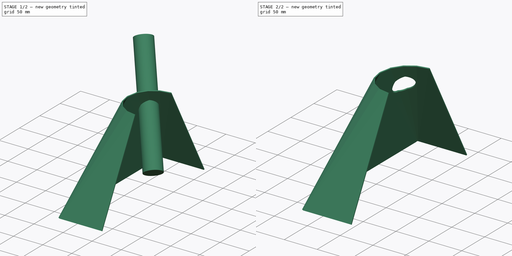
[diagram: build sequence overview — one tinted view per stage of 2, left to right]
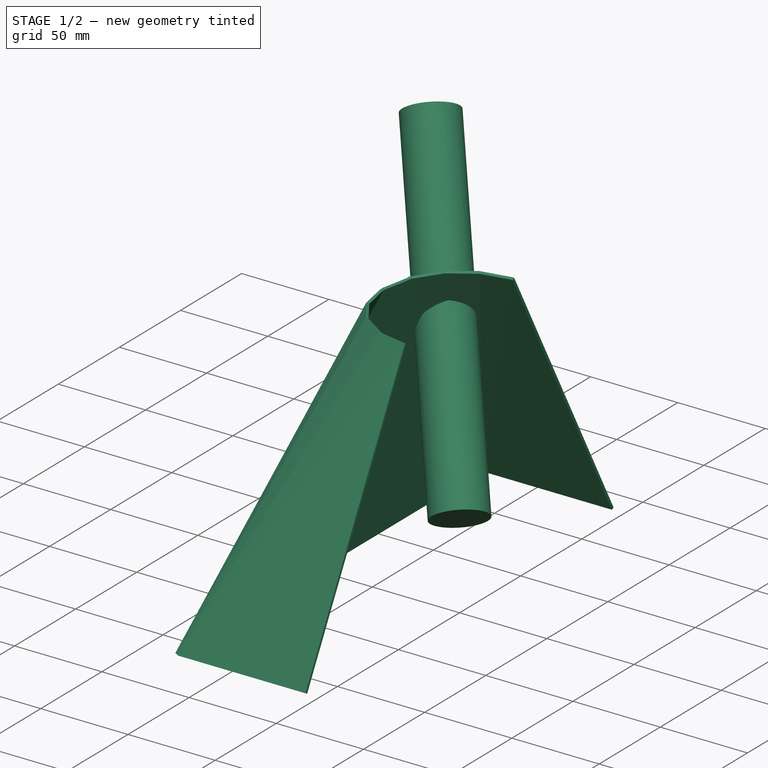
[diagram: stage 1 of 2 — iso view after this stage's code; geometry added in this stage tinted green]
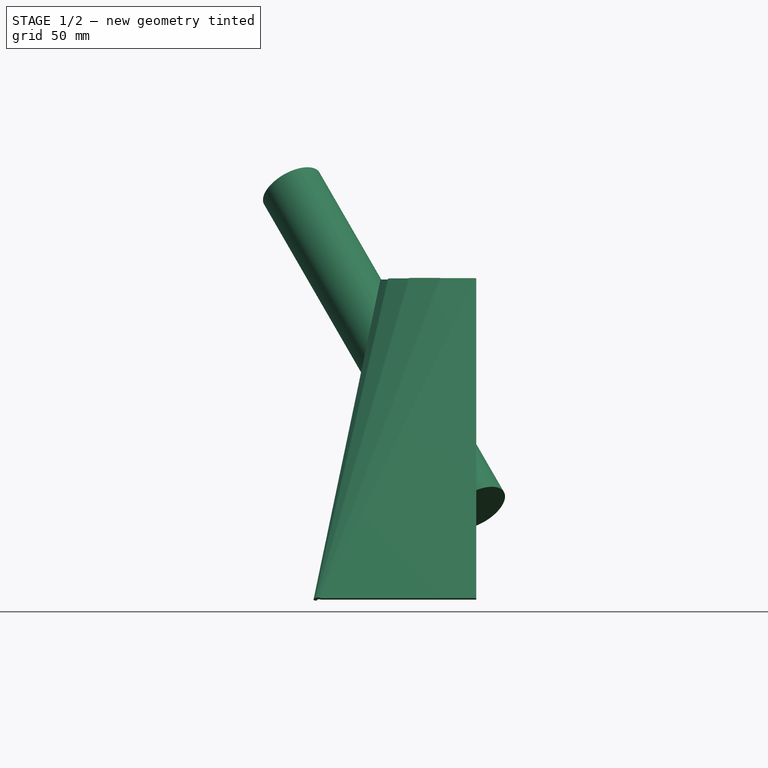
[diagram: stage 1 of 2 — front view after this stage's code; geometry added in this stage tinted green]
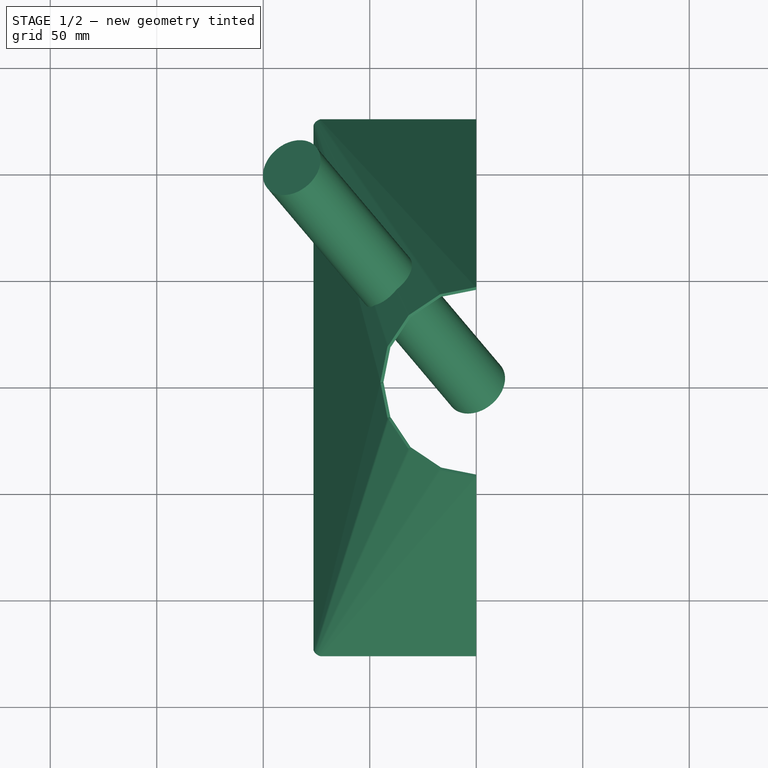
[diagram: stage 1 of 2 — top view after this stage's code; geometry added in this stage tinted green]
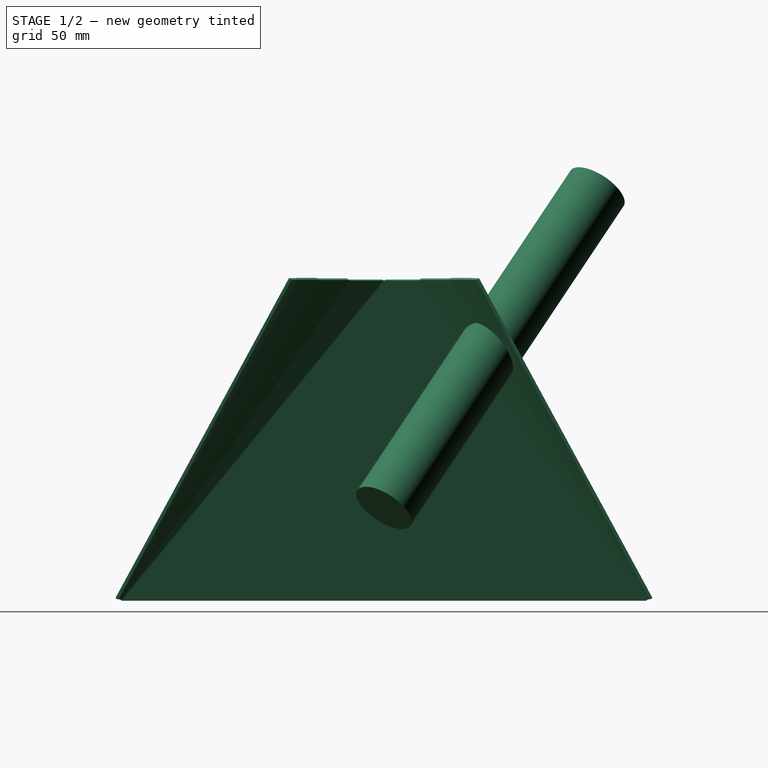
[diagram: stage 1 of 2 — right view after this stage's code; geometry added in this stage tinted green]
FCSTD DOCUMENT  (FreeCAD 0.19R25467 (Git))
Label: FC-Link-sheetmetal_square_round
License: All rights reserved
LicenseURL: http://en.wikipedia.org/wiki/All_rights_reserved
objects: PartDesign::SubShapeBinder×6, Sketcher::SketchObject×2, Part::FeaturePython×2, Part::Offset×2, PartDesign::Body×1, Part::Mirroring×1, Part::Cylinder×1, Part::Cut×1
note: 16 computed .brp shape members not serialized (recipe doc carries the construction recipe); baked Part::Feature solids carry a one-line shape summary decoded from their .brp

FEATURE [Sketcher::SketchObject] Sketch
  MapMode = 5
  Support = -> [XY_Plane]
  sketch-geometry (8):
    g0: LineSegment StartX=-73 StartY=123 StartZ=0 EndX=-73 EndY=0 EndZ=0
    g1: LineSegment StartX=-73 StartY=123 StartZ=0 EndX=0 EndY=123 EndZ=0
    g2: GeomPoint X=75 Y=123 Z=0
    g3: GeomPoint X=-73 Y=-125 Z=0
    g4: GeomPoint X=-75 Y=123 Z=0
    g5: GeomPoint X=-73 Y=125 Z=0
    g6: LineSegment [constr] StartX=-75 StartY=123 StartZ=0 EndX=-73 EndY=123 EndZ=0
    g7: LineSegment [constr] StartX=-73 StartY=123 StartZ=0 EndX=-73 EndY=125 EndZ=0
  constraints (17):
    c: Horizontal(g1)
    c: PointOnObject(g1,g-2)
    c: PointOnObject(g0,g-1)
    c: Vertical(g0)
    c: Coincident(g0,g1)
    c: Symmetric(g4,g2,g-2)
    c: PointOnObject(g4,g1)
    c: Distance(g4,g2) = 150
    c: Distance(g4,g0) = 2  'inner_radius_value'
    c: Symmetric(g5,g3,g-1)
    c: Coincident(g6,g4)
    c: Coincident(g6,g0)
    c: Coincident(g7,g0)
    c: Vertical(g7)
    c: Equal(g7,g6)
    c: Coincident(g5,g7)
    c: Distance(g5,g3) = 250
FEATURE [Sketcher::SketchObject] Sketch001
  AttachmentOffset = pos=(0,0,150) rot=(0,0,1;0rad)
  MapMode = 5
  Placement = pos=(0,0,150) rot=(0,0,1;0rad)
  Support = -> [XY_Plane]
  expr: Constraints[18] = Sketch.Constraints.inner_radius_value
  sketch-geometry (6):
    g0: ArcOfCircle [constr] CenterX=1.2452e-12 CenterY=1.1809e-12 CenterZ=0 NormalX=0 NormalY=0 NormalZ=1 AngleXU=0 Radius=41.6441 StartAngle=1.5708 EndAngle=3.14159
    g1: LineSegment StartX=-6.53e-14 StartY=41.6441 StartZ=0 EndX=-15.9365 EndY=38.4742 EndZ=0
    g2: LineSegment StartX=-15.9365 StartY=38.4742 StartZ=0 EndX=-29.4468 EndY=29.4468 EndZ=0
    g3: LineSegment StartX=-29.4468 StartY=29.4468 StartZ=0 EndX=-38.4742 EndY=15.9365 EndZ=0
    g4: LineSegment StartX=-38.4742 StartY=15.9365 StartZ=0 EndX=-41.6441 EndY=1.318e-13 EndZ=0
    g5: ArcOfCircle [constr] CenterX=7.35e-14 CenterY=-2.4538e-12 CenterZ=0 NormalX=0 NormalY=0 NormalZ=1 AngleXU=0 Radius=43.6441 StartAngle=1.5708 EndAngle=3.14159
  constraints (19):
    c: Coincident(g0,g-1)
    c: PointOnObject(g0,g-2)
    c: PointOnObject(g0,g-1)
    c: Coincident(g0,g1)
    c: Coincident(g1,g2)
    c: PointOnObject(g2,g0)
    c: Coincident(g2,g3)
    c: PointOnObject(g3,g0)
    c: Coincident(g3,g4)
    c: Coincident(g4,g0)
    c: PointOnObject(g1,g0)
    c: Equal(g1,g2)
    c: Equal(g2,g3)
    c: Equal(g3,g4)
    c: Coincident(g5,g-1)
    c: PointOnObject(g5,g-2)
    c: PointOnObject(g5,g-1)
    c: Radius(g5) = 43.6441
    c: Distance(g5,g1) = 2
FEATURE [PartDesign::SubShapeBinder] Binder
  BindCopyOnChange = 0
  BindMode = 0
  ClaimChildren = false
  Context = -> Body [Binder.]
  FillStyle = 0
  Fuse = true
  MakeFace = true
  PartialLoad = false
  Relative = true
  Support = -> [Sketch[Vertex1,Vertex2],Sketch001[Vertex1]]
  _Version = 5
FEATURE [PartDesign::SubShapeBinder] Binder001
  BindCopyOnChange = 0
  BindMode = 0
  ClaimChildren = false
  Context = -> Body [Binder001.]
  FillStyle = 0
  Fuse = true
  MakeFace = true
  PartialLoad = false
  Relative = true
  Support = -> [Binder[Vertex3,Vertex1],Sketch001[Vertex2]]
  _Version = 5
FEATURE [PartDesign::SubShapeBinder] Binder002
  BindCopyOnChange = 0
  BindMode = 0
  ClaimChildren = false
  Context = -> Body [Binder002.]
  FillStyle = 0
  Fuse = true
  MakeFace = true
  PartialLoad = false
  Relative = true
  Support = -> [Sketch[Vertex1],Sketch001[Vertex3,Vertex2]]
  _Version = 5
FEATURE [PartDesign::SubShapeBinder] Binder003
  BindCopyOnChange = 0
  BindMode = 0
  ClaimChildren = false
  Context = -> Body [Binder003.]
  FillStyle = 0
  Fuse = true
  MakeFace = true
  PartialLoad = false
  Relative = true
  Support = -> [Sketch001[Vertex4],Binder002[Vertex3,Vertex1]]
  _Version = 5
FEATURE [PartDesign::SubShapeBinder] Binder004
  BindCopyOnChange = 0
  BindMode = 0
  ClaimChildren = false
  Context = -> Body [Binder004.]
  FillStyle = 0
  Fuse = true
  MakeFace = true
  PartialLoad = false
  Relative = true
  Support = -> [Sketch001[Vertex5],Binder003[Vertex1,Vertex2]]
  _Version = 5
FEATURE [PartDesign::SubShapeBinder] Binder005
  BindCopyOnChange = 0
  BindMode = 0
  ClaimChildren = false
  Context = -> Body [Binder005.]
  FillStyle = 0
  Fuse = true
  MakeFace = true
  PartialLoad = false
  Relative = true
  Support = -> [Sketch[Vertex3],Binder004[Vertex1,Vertex3]]
  _Version = 5
FEATURE [PartDesign::Body] Body
  ExportMode = 0
  Group = -> [Sketch,Sketch001,Binder,Binder001,Binder002,Binder003,Binder004,Binder005]
  Origin = -> Origin
  _ExportChildren = -> [Sketch,Sketch001,Binder,Binder001,Binder002,Binder003,Binder004,Binder005]
  _GroupVersion = 1
FEATURE [Part::FeaturePython] Facebinder  # WARN: FeaturePython — macro-defined, semantics opaque (R4)
  Area = 21275.8
  Extrusion = 0
  Faces = -> [Binder,Binder001,Binder002,Binder003,Binder004,Binder005]
  RemoveSplitter = true
  Sew = false
FEATURE [Part::Mirroring] Part__Mirroring  label="Facebinder (Mirror #1)"
  Base = (0,0,0)
  Normal = (0,1,0)
  Source = -> Facebinder
FEATURE [Part::FeaturePython] Facebinder001  # WARN: FeaturePython — macro-defined, semantics opaque (R4)
  Area = 42551.5
  Extrusion = 0
  Faces = -> [Facebinder,Part__Mirroring]
  RemoveSplitter = true
  Sew = false
FEATURE [Part::Offset] Offset
  Fill = false
  Intersection = false
  Join = 0
  Mode = 0
  SelfIntersection = false
  Source = -> Facebinder001
  Value = 2
  expr: Value = Sketch.Constraints.inner_radius_value
FEATURE [Part::Offset] Offset001
  Fill = true
  Intersection = false
  Join = 0
  Mode = 0
  SelfIntersection = false
  Source = -> Offset
  Value = 1.5
FEATURE [Part::Cylinder] Cylinder  label="Cylindre"
  Angle = 360
  AttacherType = Attacher::AttachEngine3D
  Height = 200
  Placement = pos=(0,0,44) rot=(0.694747,0.694747,0.186157;5.54699rad)
  Radius = 15
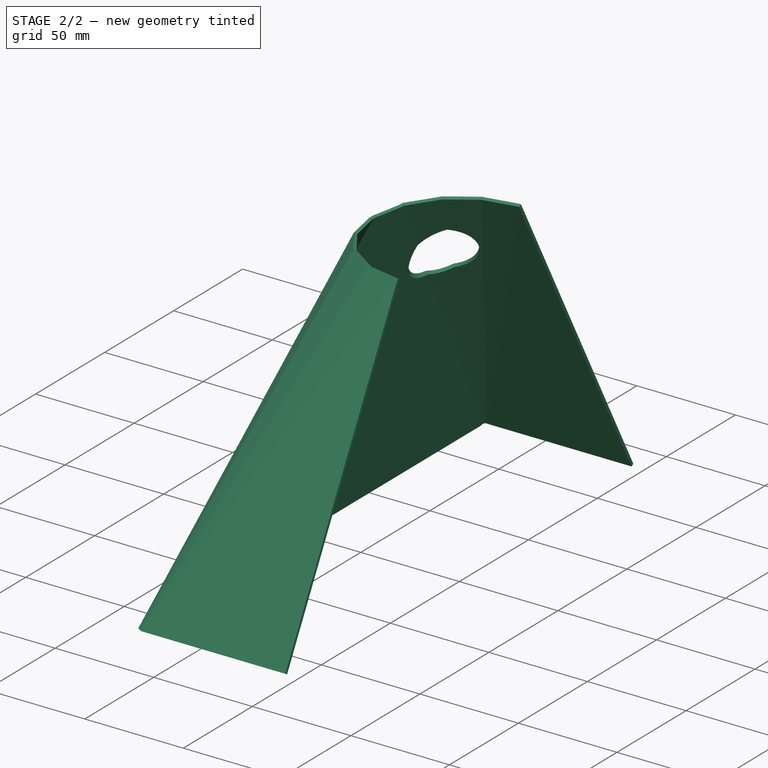
[diagram: stage 2 of 2 — iso view after this stage's code; geometry added in this stage tinted green]
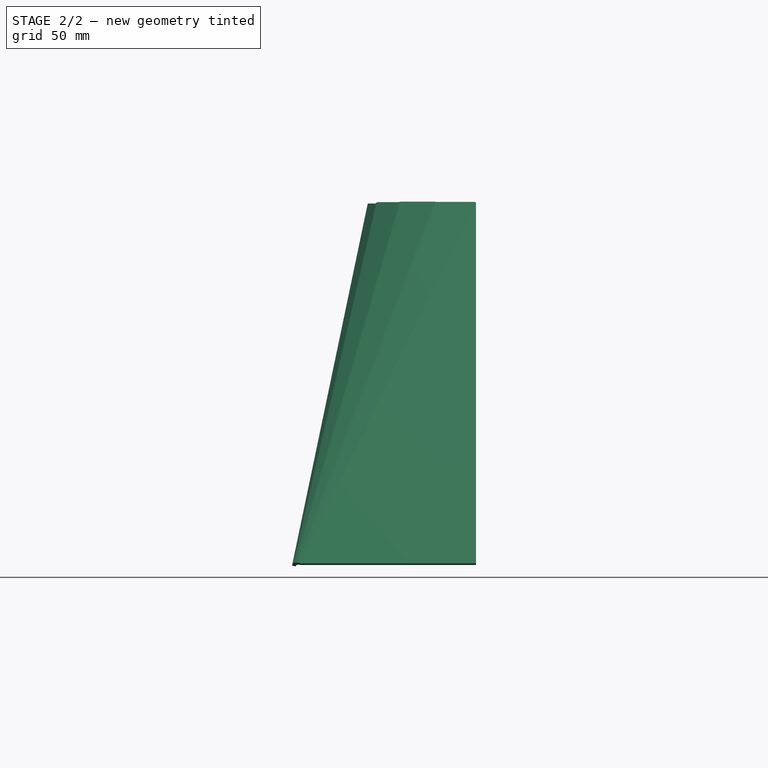
[diagram: stage 2 of 2 — front view after this stage's code; geometry added in this stage tinted green]
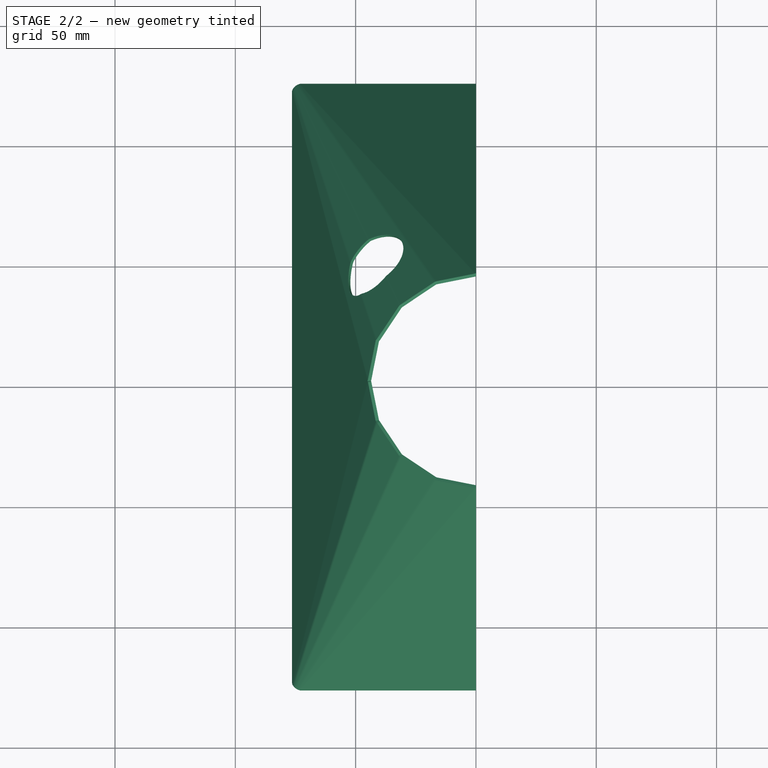
[diagram: stage 2 of 2 — top view after this stage's code; geometry added in this stage tinted green]
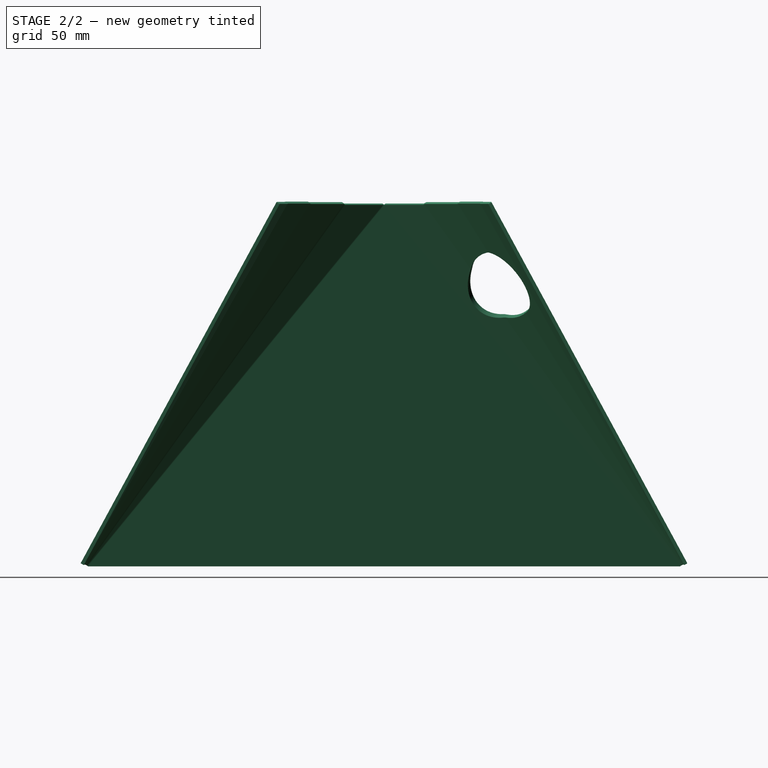
[diagram: stage 2 of 2 — right view after this stage's code; geometry added in this stage tinted green]
FEATURE [Part::Cut] Cut  label="Cut_material_0.30din"
  Base = -> Offset001
  Tool = -> Cylinder
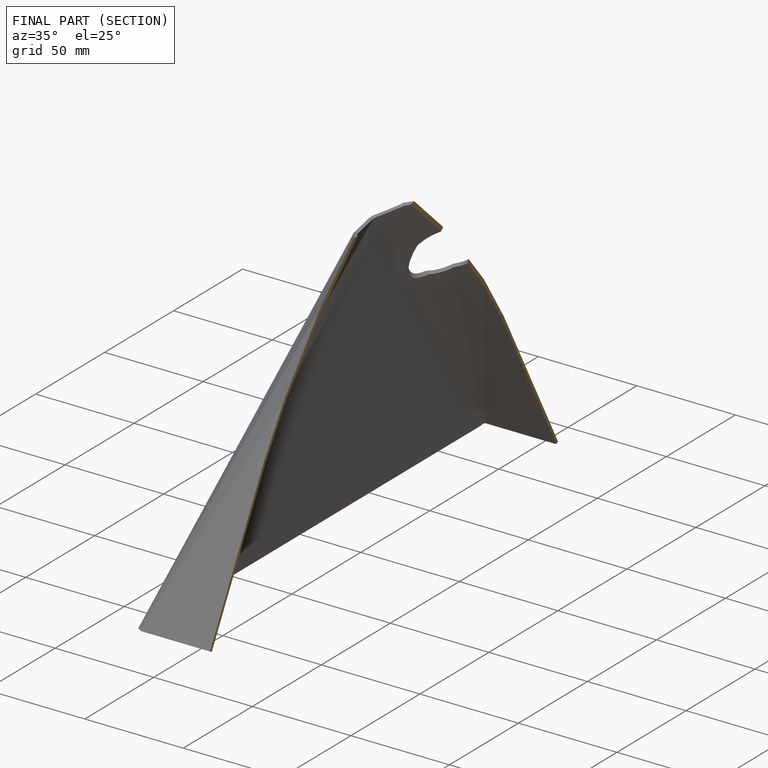
[diagram: finished part — half-section view (interior)]
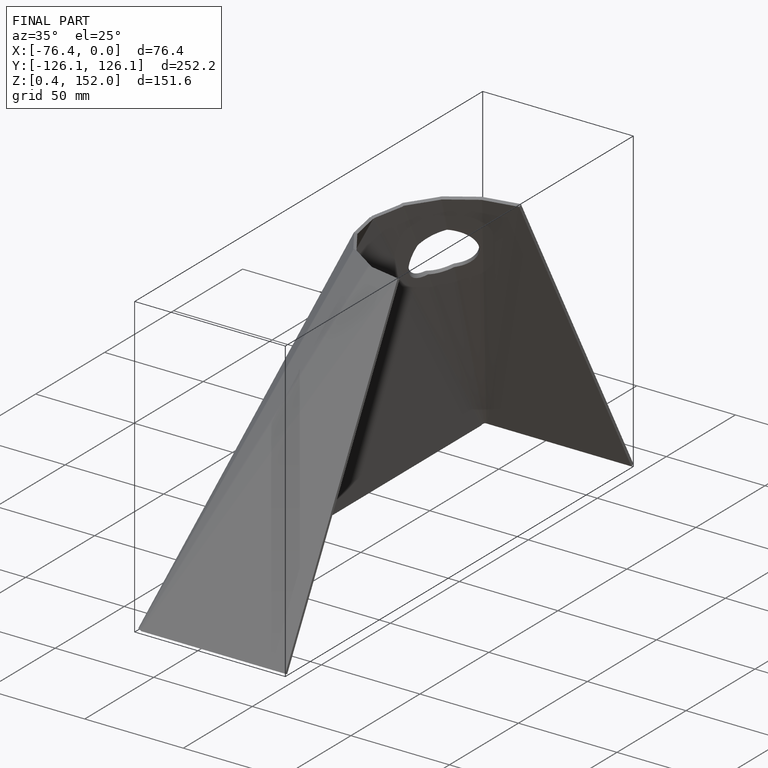
[diagram: finished part — iso view with bounding-box wireframe]
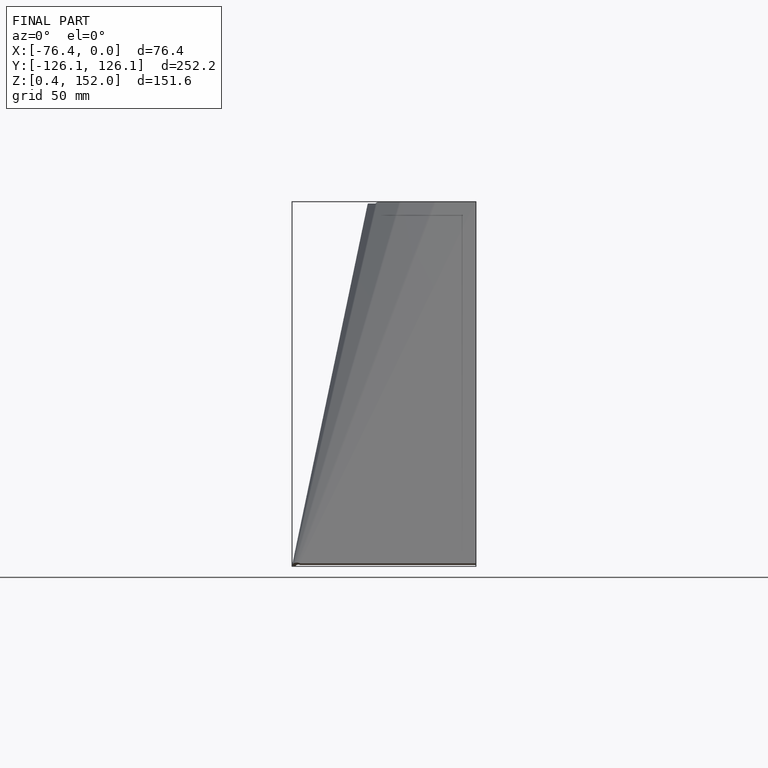
[diagram: finished part — front view with bounding-box wireframe]
